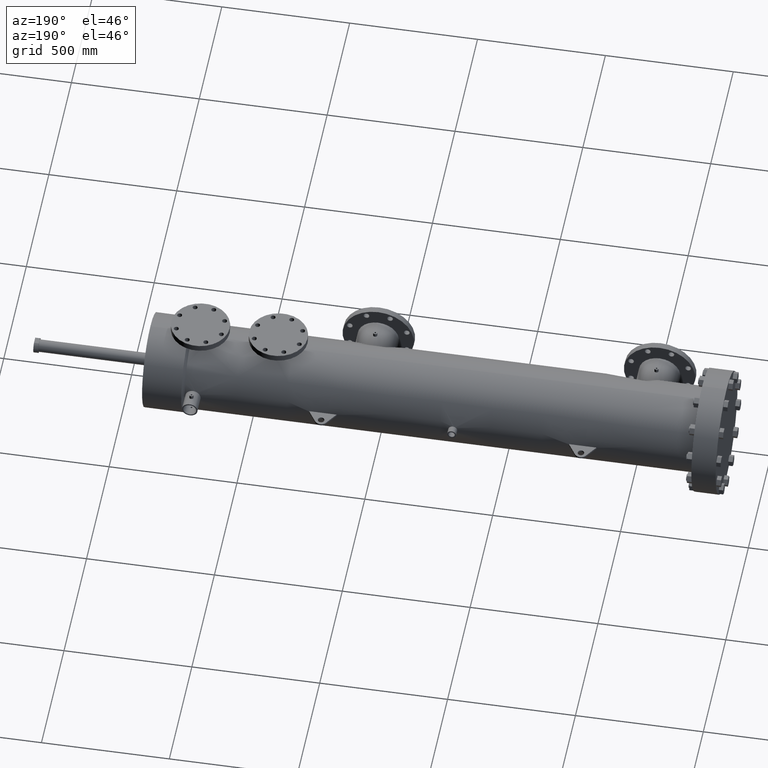
[diagram: clean part render]
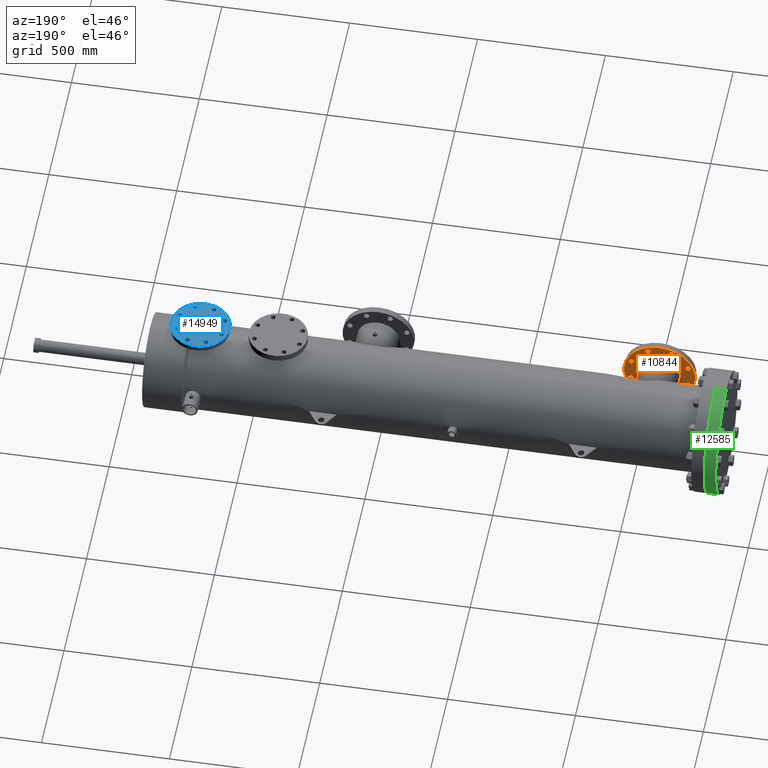
[diagram: same view with three faces highlighted in distinct colors, each labeled with its STEP entity id]
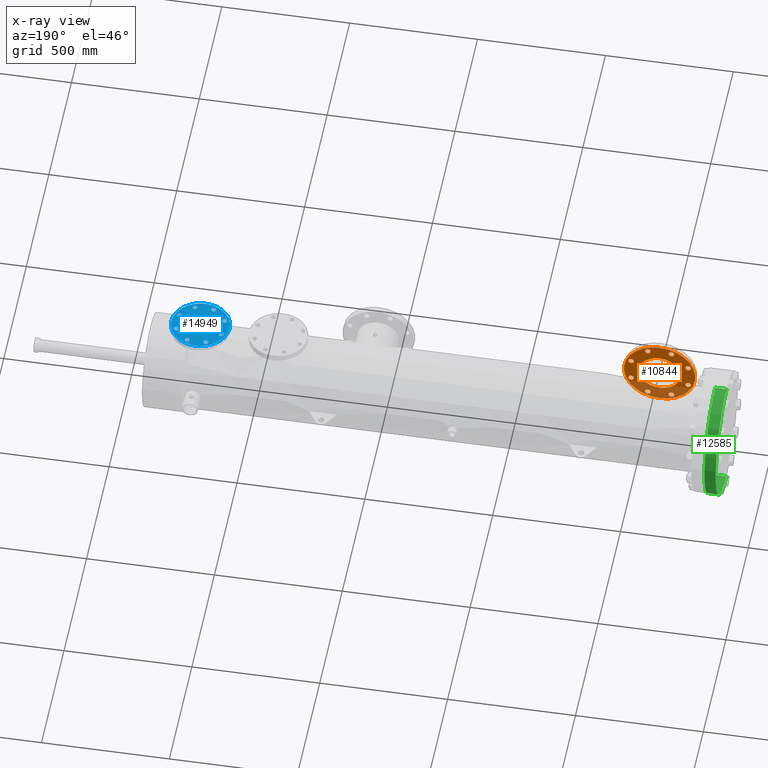
[diagram: x-ray of the same camera — body ghosted, the three highlighted faces saturated]
A machine part, auxiliary view with three faces highlighted in distinct colors.
The next image is the same camera in x-ray (body ghosted, the three faces saturated) — at least one of them is partly hidden behind the body in this view.
Their STEP definitions:

[orange] entity #10844 — the highlighted planar face has unit normal (-0, 1, 0).
#317 = FACE_BOUND ( 'NONE', #848, .T. ) ;
#665 = EDGE_LOOP ( 'NONE', ( #8991, #18816 ) ) ;
#848 = EDGE_LOOP ( 'NONE', ( #21444, #9256 ) ) ;
#927 = FACE_BOUND ( 'NONE', #665, .T. ) ;
#980 = CARTESIAN_POINT ( 'NONE',  ( 0.0000000000000000000, 173.5313553879231563, 0.0000000000000000000 ) ) ;
#1032 = CARTESIAN_POINT ( 'NONE',  ( 704.9378771982816261, 173.5313553879231563, 4.828427779428680289 ) ) ;
#1224 = FACE_BOUND ( 'NONE', #4467, .T. ) ;
#1476 = DIRECTION ( 'NONE',  ( 0.0000000000000000000, -1.000000000000000000, 0.0000000000000000000 ) ) ;
#1498 = DIRECTION ( 'NONE',  ( -0.0000000000000000000, 1.000000000000000000, -0.0000000000000000000 ) ) ;
#1524 = DIRECTION ( 'NONE',  ( 0.0000000000000000000, -1.000000000000000000, 0.0000000000000000000 ) ) ;
#1609 = DIRECTION ( 'NONE',  ( 0.0000000000000000000, 0.0000000000000000000, 1.000000000000000000 ) ) ;
#1651 = EDGE_CURVE ( 'NONE', #23925, #21858, #13624, .T. ) ;
#1785 = DIRECTION ( 'NONE',  ( 0.0000000000000000000, -1.000000000000000000, 0.0000000000000000000 ) ) ;
#2089 = CIRCLE ( 'NONE', #3123, 0.4399999999999270051 ) ;
#2125 = ORIENTED_EDGE ( 'NONE', *, *, #13041, .T. ) ;
#2153 = EDGE_LOOP ( 'NONE', ( #23672, #16772 ) ) ;
#2446 = VERTEX_POINT ( 'NONE', #21482 ) ;
#2478 = DIRECTION ( 'NONE',  ( 0.0000000000000000000, 0.0000000000000000000, -1.000000000000000000 ) ) ;
#2567 = DIRECTION ( 'NONE',  ( -0.0000000000000000000, -1.000000000000000000, -0.0000000000000000000 ) ) ;
#2743 = VERTEX_POINT ( 'NONE', #18521 ) ;
#2749 = EDGE_CURVE ( 'NONE', #24200, #19822, #10489, .T. ) ;
#2894 = AXIS2_PLACEMENT_3D ( 'NONE', #24964, #1476, #15161 ) ;
#3033 = AXIS2_PLACEMENT_3D ( 'NONE', #8732, #24682, #10682 ) ;
#3123 = AXIS2_PLACEMENT_3D ( 'NONE', #17172, #24815, #13226 ) ;
#3325 = EDGE_CURVE ( 'NONE', #4566, #2446, #17848, .T. ) ;
#3763 = CARTESIAN_POINT ( 'NONE',  ( 708.5735562733002553, 173.5313553879231563, -4.388877951918441767 ) ) ;
#3772 = DIRECTION ( 'NONE',  ( 0.0000000000000000000, -1.000000000000000000, 0.0000000000000000000 ) ) ;
#4074 = DIRECTION ( 'NONE',  ( 0.0000000000000000000, -1.000000000000000000, 0.0000000000000000000 ) ) ;
#4123 = CIRCLE ( 'NONE', #13800, 0.4399999999999270051 ) ;
#4143 = VERTEX_POINT ( 'NONE', #7001 ) ;
#4157 = AXIS2_PLACEMENT_3D ( 'NONE', #14833, #16824, #5076 ) ;
#4357 = CARTESIAN_POINT ( 'NONE',  ( 706.7556235020157374, 173.5313553879231563, 0.0000000000000000000 ) ) ;
#4467 = EDGE_LOOP ( 'NONE', ( #4849, #6104 ) ) ;
#4566 = VERTEX_POINT ( 'NONE', #25042 ) ;
#4775 = CARTESIAN_POINT ( 'NONE',  ( 706.7556235020157374, 173.5313553879231563, 0.0000000000000000000 ) ) ;
#4823 = CIRCLE ( 'NONE', #17006, 0.4399999999999270051 ) ;
#4849 = ORIENTED_EDGE ( 'NONE', *, *, #24066, .T. ) ;
#4893 = DIRECTION ( 'NONE',  ( -0.0000000000000000000, 1.000000000000000000, -0.0000000000000000000 ) ) ;
#5070 = DIRECTION ( 'NONE',  ( 0.0000000000000000000, 0.0000000000000000000, 1.000000000000000000 ) ) ;
#5074 = CARTESIAN_POINT ( 'NONE',  ( 706.7556235020157374, 173.5313553879231563, 3.196850393700750192 ) ) ;
#5076 = DIRECTION ( 'NONE',  ( 0.0000000000000000000, 0.0000000000000000000, 1.000000000000000000 ) ) ;
#5351 = EDGE_CURVE ( 'NONE', #8994, #5703, #4823, .T. ) ;
#5399 = CARTESIAN_POINT ( 'NONE',  ( 702.3670638701173630, 173.5313553879231563, -1.818064623754354292 ) ) ;
#5703 = VERTEX_POINT ( 'NONE', #13393 ) ;
#5884 = DIRECTION ( 'NONE',  ( 0.0000000000000000000, -1.000000000000000000, 0.0000000000000000000 ) ) ;
#6104 = ORIENTED_EDGE ( 'NONE', *, *, #5351, .T. ) ;
#6255 = CIRCLE ( 'NONE', #24342, 0.4400000000000728884 ) ;
#6296 = EDGE_CURVE ( 'NONE', #4143, #8668, #19845, .T. ) ;
#6766 = DIRECTION ( 'NONE',  ( 0.0000000000000000000, 0.0000000000000000000, -1.000000000000000000 ) ) ;
#7001 = CARTESIAN_POINT ( 'NONE',  ( 706.7556235020157374, 173.5313553879231563, -3.196850393700750192 ) ) ;
#7063 = DIRECTION ( 'NONE',  ( -0.0000000000000000000, 1.000000000000000000, 0.0000000000000000000 ) ) ;
#7096 = AXIS2_PLACEMENT_3D ( 'NONE', #7272, #18947, #14872 ) ;
#7272 = CARTESIAN_POINT ( 'NONE',  ( 704.9378771982812850, 173.5313553879231563, -4.388877951918268572 ) ) ;
#7679 = DIRECTION ( 'NONE',  ( 0.0000000000000000000, 0.0000000000000000000, 1.000000000000000000 ) ) ;
#8019 = CARTESIAN_POINT ( 'NONE',  ( 706.7556235020157374, 173.5313553879231563, 0.0000000000000000000 ) ) ;
#8040 = DIRECTION ( 'NONE',  ( 0.0000000000000000000, 0.0000000000000000000, 1.000000000000000000 ) ) ;
#8482 = CARTESIAN_POINT ( 'NONE',  ( 708.5735562733008237, 173.5313553879231563, 4.828427779428394295 ) ) ;
#8668 = VERTEX_POINT ( 'NONE', #5074 ) ;
#8692 = AXIS2_PLACEMENT_3D ( 'NONE', #23321, #3772, #25018 ) ;
#8732 = CARTESIAN_POINT ( 'NONE',  ( 704.9378771982816261, 173.5313553879231563, 4.388427779428607067 ) ) ;
#8991 = ORIENTED_EDGE ( 'NONE', *, *, #23638, .T. ) ;
#8994 = VERTEX_POINT ( 'NONE', #9067 ) ;
#9067 = CARTESIAN_POINT ( 'NONE',  ( 708.5735562733002553, 173.5313553879231563, -3.948877951918515095 ) ) ;
#9107 = EDGE_CURVE ( 'NONE', #24517, #18275, #23998, .T. ) ;
#9163 = ORIENTED_EDGE ( 'NONE', *, *, #19997, .T. ) ;
#9186 = AXIS2_PLACEMENT_3D ( 'NONE', #13256, #1524, #1609 ) ;
#9256 = ORIENTED_EDGE ( 'NONE', *, *, #16052, .T. ) ;
#9330 = DIRECTION ( 'NONE',  ( 0.0000000000000000000, 0.0000000000000000000, 1.000000000000000000 ) ) ;
#9333 = DIRECTION ( 'NONE',  ( 0.0000000000000000000, 0.0000000000000000000, 1.000000000000000000 ) ) ;
#9380 = AXIS2_PLACEMENT_3D ( 'NONE', #15637, #15720, #8040 ) ;
#9437 = ORIENTED_EDGE ( 'NONE', *, *, #16555, .T. ) ;
#9498 = VERTEX_POINT ( 'NONE', #15227 ) ;
#9717 = CARTESIAN_POINT ( 'NONE',  ( 708.5735562733002553, 173.5313553879231563, -4.388877951918441767 ) ) ;
#9795 = ORIENTED_EDGE ( 'NONE', *, *, #18143, .T. ) ;
#9806 = DIRECTION ( 'NONE',  ( 0.0000000000000000000, 0.0000000000000000000, 1.000000000000000000 ) ) ;
#9883 = VERTEX_POINT ( 'NONE', #21350 ) ;
#10039 = CARTESIAN_POINT ( 'NONE',  ( 702.3670638701173630, 173.5313553879231563, -2.258064623754281186 ) ) ;
#10075 = ORIENTED_EDGE ( 'NONE', *, *, #15672, .T. ) ;
#10214 = CARTESIAN_POINT ( 'NONE',  ( 704.9378771982816261, 173.5313553879231563, 3.948427779428534290 ) ) ;
#10298 = CIRCLE ( 'NONE', #13384, 0.4399999999999270051 ) ;
#10489 = CIRCLE ( 'NONE', #3033, 0.4400000000000728884 ) ;
#10601 = CARTESIAN_POINT ( 'NONE',  ( 702.3670638701173630, 173.5313553879231563, -1.818064623754354292 ) ) ;
#10682 = DIRECTION ( 'NONE',  ( 0.0000000000000000000, 0.0000000000000000000, 1.000000000000000000 ) ) ;
#10844 = ADVANCED_FACE ( 'NONE', ( #927, #23930, #16854, #11630, #15598, #1224, #317, #24551, #21508, #15304 ), #12867, .T. ) ;
#10879 = ORIENTED_EDGE ( 'NONE', *, *, #9107, .T. ) ;
#11076 = EDGE_LOOP ( 'NONE', ( #9795, #12222 ) ) ;
#11335 = CARTESIAN_POINT ( 'NONE',  ( 711.1443696014645184, 173.5313553879231563, 1.817614451264482733 ) ) ;
#11461 = ORIENTED_EDGE ( 'NONE', *, *, #24530, .T. ) ;
#11529 = AXIS2_PLACEMENT_3D ( 'NONE', #10601, #16519, #12488 ) ;
#11553 = ORIENTED_EDGE ( 'NONE', *, *, #6296, .T. ) ;
#11630 = FACE_BOUND ( 'NONE', #21913, .T. ) ;
#11944 = CARTESIAN_POINT ( 'NONE',  ( 702.3670638701175903, 173.5313553879231563, 1.377614451264835393 ) ) ;
#12046 = CIRCLE ( 'NONE', #7096, 0.4399999999999270051 ) ;
#12112 = CIRCLE ( 'NONE', #19610, 0.4399999999999270051 ) ;
#12125 = CARTESIAN_POINT ( 'NONE',  ( 711.1443696014645184, 173.5313553879231563, 2.257614451264409627 ) ) ;
#12191 = EDGE_CURVE ( 'NONE', #2743, #15816, #24335, .T. ) ;
#12222 = ORIENTED_EDGE ( 'NONE', *, *, #20955, .T. ) ;
#12488 = DIRECTION ( 'NONE',  ( 0.0000000000000000000, 0.0000000000000000000, 1.000000000000000000 ) ) ;
#12867 = PLANE ( 'NONE',  #21916 ) ;
#13041 = EDGE_CURVE ( 'NONE', #14348, #9883, #21255, .T. ) ;
#13226 = DIRECTION ( 'NONE',  ( 0.0000000000000000000, 0.0000000000000000000, 1.000000000000000000 ) ) ;
#13256 = CARTESIAN_POINT ( 'NONE',  ( 711.1443696014645184, 173.5313553879231563, 1.817614451264482733 ) ) ;
#13281 = CARTESIAN_POINT ( 'NONE',  ( 711.1443696014642910, 173.5313553879231563, -1.818064623754634068 ) ) ;
#13384 = AXIS2_PLACEMENT_3D ( 'NONE', #3763, #1785, #23002 ) ;
#13393 = CARTESIAN_POINT ( 'NONE',  ( 708.5735562733002553, 173.5313553879231563, -4.828877951918369327 ) ) ;
#13446 = CARTESIAN_POINT ( 'NONE',  ( 711.1443696014642910, 173.5313553879231563, -1.378064623754706952 ) ) ;
#13555 = CARTESIAN_POINT ( 'NONE',  ( 704.9378771982816261, 173.5313553879231563, 4.388427779428607067 ) ) ;
#13624 = CIRCLE ( 'NONE', #22592, 0.4399999999999270051 ) ;
#13800 = AXIS2_PLACEMENT_3D ( 'NONE', #15615, #5884, #9806 ) ;
#13960 = EDGE_LOOP ( 'NONE', ( #2125, #10075 ) ) ;
#14319 = EDGE_LOOP ( 'NONE', ( #11553, #11461 ) ) ;
#14348 = VERTEX_POINT ( 'NONE', #10039 ) ;
#14833 = CARTESIAN_POINT ( 'NONE',  ( 708.5735562733008237, 173.5313553879231563, 4.388427779428467623 ) ) ;
#14872 = DIRECTION ( 'NONE',  ( 0.0000000000000000000, 0.0000000000000000000, 1.000000000000000000 ) ) ;
#14877 = CIRCLE ( 'NONE', #2894, 0.4399999999999270051 ) ;
#15161 = DIRECTION ( 'NONE',  ( 0.0000000000000000000, 0.0000000000000000000, 1.000000000000000000 ) ) ;
#15227 = CARTESIAN_POINT ( 'NONE',  ( 704.9378771982812850, 173.5313553879231563, -3.948877951918341900 ) ) ;
#15256 = DIRECTION ( 'NONE',  ( 0.0000000000000000000, 0.0000000000000000000, 1.000000000000000000 ) ) ;
#15304 = FACE_OUTER_BOUND ( 'NONE', #22053, .T. ) ;
#15316 = DIRECTION ( 'NONE',  ( 0.0000000000000000000, -1.000000000000000000, 0.0000000000000000000 ) ) ;
#15598 = FACE_BOUND ( 'NONE', #11076, .T. ) ;
#15615 = CARTESIAN_POINT ( 'NONE',  ( 711.1443696014642910, 173.5313553879231563, -1.818064623754634068 ) ) ;
#15637 = CARTESIAN_POINT ( 'NONE',  ( 702.3670638701175903, 173.5313553879231563, 1.817614451264762510 ) ) ;
#15672 = EDGE_CURVE ( 'NONE', #9883, #14348, #18678, .T. ) ;
#15720 = DIRECTION ( 'NONE',  ( 0.0000000000000000000, -1.000000000000000000, 0.0000000000000000000 ) ) ;
#15816 = VERTEX_POINT ( 'NONE', #11944 ) ;
#16037 = AXIS2_PLACEMENT_3D ( 'NONE', #5399, #19143, #9333 ) ;
#16052 = EDGE_CURVE ( 'NONE', #9498, #19671, #2089, .T. ) ;
#16232 = ORIENTED_EDGE ( 'NONE', *, *, #18488, .T. ) ;
#16486 = AXIS2_PLACEMENT_3D ( 'NONE', #8019, #1498, #19852 ) ;
#16519 = DIRECTION ( 'NONE',  ( 0.0000000000000000000, -1.000000000000000000, 0.0000000000000000000 ) ) ;
#16555 = EDGE_CURVE ( 'NONE', #2446, #4566, #22667, .T. ) ;
#16623 = CARTESIAN_POINT ( 'NONE',  ( 706.7556235020157374, 173.5313553879231563, 0.0000000000000000000 ) ) ;
#16772 = ORIENTED_EDGE ( 'NONE', *, *, #17161, .T. ) ;
#16790 = VERTEX_POINT ( 'NONE', #13446 ) ;
#16824 = DIRECTION ( 'NONE',  ( 0.0000000000000000000, -1.000000000000000000, 0.0000000000000000000 ) ) ;
#16854 = FACE_BOUND ( 'NONE', #19131, .T. ) ;
#17006 = AXIS2_PLACEMENT_3D ( 'NONE', #9717, #4074, #7679 ) ;
#17161 = EDGE_CURVE ( 'NONE', #21858, #23925, #22022, .T. ) ;
#17172 = CARTESIAN_POINT ( 'NONE',  ( 704.9378771982812850, 173.5313553879231563, -4.388877951918268572 ) ) ;
#17715 = CARTESIAN_POINT ( 'NONE',  ( 704.9378771982812850, 173.5313553879231563, -4.828877951918196132 ) ) ;
#17848 = CIRCLE ( 'NONE', #16486, 5.500000000000049738 ) ;
#17877 = CARTESIAN_POINT ( 'NONE',  ( 708.5735562733008237, 173.5313553879231563, 3.948427779428540063 ) ) ;
#18143 = EDGE_CURVE ( 'NONE', #20004, #16790, #4123, .T. ) ;
#18275 = VERTEX_POINT ( 'NONE', #17877 ) ;
#18363 = AXIS2_PLACEMENT_3D ( 'NONE', #4357, #2567, #2478 ) ;
#18488 = EDGE_CURVE ( 'NONE', #19822, #24200, #6255, .T. ) ;
#18517 = DIRECTION ( 'NONE',  ( -0.0000000000000000000, -1.000000000000000000, -0.0000000000000000000 ) ) ;
#18521 = CARTESIAN_POINT ( 'NONE',  ( 702.3670638701175903, 173.5313553879231563, 2.257614451264689404 ) ) ;
#18631 = DIRECTION ( 'NONE',  ( 0.0000000000000000000, 0.0000000000000000000, 1.000000000000000000 ) ) ;
#18678 = CIRCLE ( 'NONE', #16037, 0.4399999999999270051 ) ;
#18816 = ORIENTED_EDGE ( 'NONE', *, *, #12191, .T. ) ;
#18825 = CARTESIAN_POINT ( 'NONE',  ( 711.1443696014642910, 173.5313553879231563, -2.258064623754560962 ) ) ;
#18947 = DIRECTION ( 'NONE',  ( 0.0000000000000000000, -1.000000000000000000, 0.0000000000000000000 ) ) ;
#19023 = EDGE_CURVE ( 'NONE', #19671, #9498, #12046, .T. ) ;
#19079 = ORIENTED_EDGE ( 'NONE', *, *, #3325, .T. ) ;
#19089 = DIRECTION ( 'NONE',  ( 0.0000000000000000000, -1.000000000000000000, 0.0000000000000000000 ) ) ;
#19131 = EDGE_LOOP ( 'NONE', ( #9163, #10879 ) ) ;
#19143 = DIRECTION ( 'NONE',  ( 0.0000000000000000000, -1.000000000000000000, 0.0000000000000000000 ) ) ;
#19610 = AXIS2_PLACEMENT_3D ( 'NONE', #13281, #15316, #9330 ) ;
#19671 = VERTEX_POINT ( 'NONE', #17715 ) ;
#19822 = VERTEX_POINT ( 'NONE', #10214 ) ;
#19845 = CIRCLE ( 'NONE', #18363, 3.196850393700750192 ) ;
#19852 = DIRECTION ( 'NONE',  ( 0.0000000000000000000, 0.0000000000000000000, 1.000000000000000000 ) ) ;
#19997 = EDGE_CURVE ( 'NONE', #18275, #24517, #20831, .T. ) ;
#20004 = VERTEX_POINT ( 'NONE', #18825 ) ;
#20831 = CIRCLE ( 'NONE', #4157, 0.4399999999999270051 ) ;
#20955 = EDGE_CURVE ( 'NONE', #16790, #20004, #12112, .T. ) ;
#21167 = AXIS2_PLACEMENT_3D ( 'NONE', #4775, #18517, #6766 ) ;
#21255 = CIRCLE ( 'NONE', #11529, 0.4399999999999270051 ) ;
#21350 = CARTESIAN_POINT ( 'NONE',  ( 702.3670638701173630, 173.5313553879231563, -1.378064623754427176 ) ) ;
#21444 = ORIENTED_EDGE ( 'NONE', *, *, #19023, .T. ) ;
#21482 = CARTESIAN_POINT ( 'NONE',  ( 706.7556235020157374, 173.5313553879231563, 5.500000000000049738 ) ) ;
#21508 = FACE_BOUND ( 'NONE', #14319, .T. ) ;
#21758 = CIRCLE ( 'NONE', #21167, 3.196850393700750192 ) ;
#21858 = VERTEX_POINT ( 'NONE', #12125 ) ;
#21913 = EDGE_LOOP ( 'NONE', ( #16232, #22328 ) ) ;
#21916 = AXIS2_PLACEMENT_3D ( 'NONE', #980, #7063, #5070 ) ;
#22022 = CIRCLE ( 'NONE', #9186, 0.4399999999999270051 ) ;
#22053 = EDGE_LOOP ( 'NONE', ( #9437, #19079 ) ) ;
#22328 = ORIENTED_EDGE ( 'NONE', *, *, #2749, .T. ) ;
#22592 = AXIS2_PLACEMENT_3D ( 'NONE', #11335, #19089, #15256 ) ;
#22667 = CIRCLE ( 'NONE', #23330, 5.500000000000049738 ) ;
#22752 = CARTESIAN_POINT ( 'NONE',  ( 711.1443696014645184, 173.5313553879231563, 1.377614451264555617 ) ) ;
#23002 = DIRECTION ( 'NONE',  ( 0.0000000000000000000, 0.0000000000000000000, 1.000000000000000000 ) ) ;
#23321 = CARTESIAN_POINT ( 'NONE',  ( 708.5735562733008237, 173.5313553879231563, 4.388427779428467623 ) ) ;
#23330 = AXIS2_PLACEMENT_3D ( 'NONE', #16623, #4893, #18631 ) ;
#23638 = EDGE_CURVE ( 'NONE', #15816, #2743, #14877, .T. ) ;
#23672 = ORIENTED_EDGE ( 'NONE', *, *, #1651, .T. ) ;
#23860 = DIRECTION ( 'NONE',  ( 0.0000000000000000000, 0.0000000000000000000, 1.000000000000000000 ) ) ;
#23925 = VERTEX_POINT ( 'NONE', #22752 ) ;
#23930 = FACE_BOUND ( 'NONE', #2153, .T. ) ;
#23944 = DIRECTION ( 'NONE',  ( 0.0000000000000000000, -1.000000000000000000, 0.0000000000000000000 ) ) ;
#23998 = CIRCLE ( 'NONE', #8692, 0.4399999999999270051 ) ;
#24066 = EDGE_CURVE ( 'NONE', #5703, #8994, #10298, .T. ) ;
#24200 = VERTEX_POINT ( 'NONE', #1032 ) ;
#24335 = CIRCLE ( 'NONE', #9380, 0.4399999999999270051 ) ;
#24342 = AXIS2_PLACEMENT_3D ( 'NONE', #13555, #23944, #23860 ) ;
#24517 = VERTEX_POINT ( 'NONE', #8482 ) ;
#24530 = EDGE_CURVE ( 'NONE', #8668, #4143, #21758, .T. ) ;
#24551 = FACE_BOUND ( 'NONE', #13960, .T. ) ;
#24682 = DIRECTION ( 'NONE',  ( 0.0000000000000000000, -1.000000000000000000, 0.0000000000000000000 ) ) ;
#24815 = DIRECTION ( 'NONE',  ( 0.0000000000000000000, -1.000000000000000000, 0.0000000000000000000 ) ) ;
#24964 = CARTESIAN_POINT ( 'NONE',  ( 702.3670638701175903, 173.5313553879231563, 1.817614451264762510 ) ) ;
#25018 = DIRECTION ( 'NONE',  ( 0.0000000000000000000, 0.0000000000000000000, 1.000000000000000000 ) ) ;
#25042 = CARTESIAN_POINT ( 'NONE',  ( 706.7556235020157374, 173.5313553879231563, -5.500000000000049738 ) ) ;

[blue] entity #14949 — the highlighted planar face has unit normal (0, 0, 1).
#452 = ORIENTED_EDGE ( 'NONE', *, *, #15515, .T. ) ;
#489 = AXIS2_PLACEMENT_3D ( 'NONE', #3701, #5744, #9749 ) ;
#649 = ORIENTED_EDGE ( 'NONE', *, *, #19579, .F. ) ;
#849 = DIRECTION ( 'NONE',  ( 1.000000000000000000, 0.0000000000000000000, 0.0000000000000000000 ) ) ;
#900 = EDGE_CURVE ( 'NONE', #5431, #13920, #9945, .T. ) ;
#1376 = CARTESIAN_POINT ( 'NONE',  ( 772.1004278885422991, 185.5985057126212325, 8.999999999999998224 ) ) ;
#1385 = AXIS2_PLACEMENT_3D ( 'NONE', #7202, #20696, #22765 ) ;
#1482 = AXIS2_PLACEMENT_3D ( 'NONE', #13416, #3668, #7604 ) ;
#1543 = FACE_BOUND ( 'NONE', #6343, .T. ) ;
#1616 = CARTESIAN_POINT ( 'NONE',  ( 779.0295243823768487, 182.7283799698831501, 8.999999999999998224 ) ) ;
#1707 = DIRECTION ( 'NONE',  ( 0.0000000000000000000, 0.0000000000000000000, 1.000000000000000000 ) ) ;
#1755 = DIRECTION ( 'NONE',  ( 1.000000000000000000, 0.0000000000000000000, 0.0000000000000000000 ) ) ;
#2711 = DIRECTION ( 'NONE',  ( 1.000000000000000000, 0.0000000000000000000, -0.0000000000000000000 ) ) ;
#2773 = DIRECTION ( 'NONE',  ( 0.0000000000000000000, 0.0000000000000000000, 1.000000000000000000 ) ) ;
#2784 = FACE_BOUND ( 'NONE', #17914, .T. ) ;
#2887 = CARTESIAN_POINT ( 'NONE',  ( 777.3750390068287288, 180.6988945943349449, 8.999999999999998224 ) ) ;
#3048 = CIRCLE ( 'NONE', #24792, 4.500000373997108838 ) ;
#3065 = CARTESIAN_POINT ( 'NONE',  ( 778.6545243823768487, 182.7283799698831501, 8.999999999999998224 ) ) ;
#3080 = AXIS2_PLACEMENT_3D ( 'NONE', #22745, #22570, #849 ) ;
#3121 = CIRCLE ( 'NONE', #14973, 0.3750000000000002220 ) ;
#3572 = EDGE_CURVE ( 'NONE', #18085, #17544, #8038, .T. ) ;
#3668 = DIRECTION ( 'NONE',  ( 0.0000000000000000000, 0.0000000000000000000, 1.000000000000000000 ) ) ;
#3701 = CARTESIAN_POINT ( 'NONE',  ( 779.0295243823768487, 185.5985057126212325, 8.999999999999998224 ) ) ;
#3782 = CARTESIAN_POINT ( 'NONE',  ( 771.7254278885422991, 185.5985057126212325, 8.999999999999998224 ) ) ;
#4011 = ORIENTED_EDGE ( 'NONE', *, *, #25153, .F. ) ;
#4043 = AXIS2_PLACEMENT_3D ( 'NONE', #1616, #17119, #7452 ) ;
#4122 = AXIS2_PLACEMENT_3D ( 'NONE', #7054, #12946, #8932 ) ;
#4490 = PLANE ( 'NONE',  #5553 ) ;
#4563 = VERTEX_POINT ( 'NONE', #11064 ) ;
#4582 = ORIENTED_EDGE ( 'NONE', *, *, #21492, .F. ) ;
#4595 = CIRCLE ( 'NONE', #11933, 0.3750000000000002220 ) ;
#4694 = VERTEX_POINT ( 'NONE', #17412 ) ;
#4878 = FACE_BOUND ( 'NONE', #16862, .T. ) ;
#4954 = EDGE_CURVE ( 'NONE', #4563, #14147, #24152, .T. ) ;
#5077 = VERTEX_POINT ( 'NONE', #16853 ) ;
#5084 = DIRECTION ( 'NONE',  ( 0.0000000000000000000, 0.0000000000000000000, 1.000000000000000000 ) ) ;
#5243 = VERTEX_POINT ( 'NONE', #7942 ) ;
#5278 = CARTESIAN_POINT ( 'NONE',  ( 780.0649765094566419, 184.1634428412521913, 8.999999999999998224 ) ) ;
#5324 = ORIENTED_EDGE ( 'NONE', *, *, #16785, .F. ) ;
#5337 = DIRECTION ( 'NONE',  ( 1.000000000000000000, 0.0000000000000000000, 0.0000000000000000000 ) ) ;
#5431 = VERTEX_POINT ( 'NONE', #2887 ) ;
#5504 = EDGE_LOOP ( 'NONE', ( #23333, #13903 ) ) ;
#5553 = AXIS2_PLACEMENT_3D ( 'NONE', #18311, #18218, #2711 ) ;
#5646 = CIRCLE ( 'NONE', #4122, 0.3750000000000002220 ) ;
#5670 = EDGE_LOOP ( 'NONE', ( #4582, #649 ) ) ;
#5744 = DIRECTION ( 'NONE',  ( 0.0000000000000000000, 0.0000000000000000000, 1.000000000000000000 ) ) ;
#5977 = EDGE_CURVE ( 'NONE', #13920, #5431, #8503, .T. ) ;
#6004 = CIRCLE ( 'NONE', #1385, 0.3750000000000002220 ) ;
#6123 = VERTEX_POINT ( 'NONE', #7216 ) ;
#6343 = EDGE_LOOP ( 'NONE', ( #18950, #4011 ) ) ;
#6561 = AXIS2_PLACEMENT_3D ( 'NONE', #13336, #7443, #19274 ) ;
#7053 = VERTEX_POINT ( 'NONE', #19548 ) ;
#7054 = CARTESIAN_POINT ( 'NONE',  ( 774.1299132640904190, 187.6279910881695230, 8.999999999999998224 ) ) ;
#7202 = CARTESIAN_POINT ( 'NONE',  ( 772.1004278885422991, 182.7283799698831501, 8.999999999999998224 ) ) ;
#7216 = CARTESIAN_POINT ( 'NONE',  ( 777.3750390068287288, 187.6279910881695230, 8.999999999999998224 ) ) ;
#7323 = DIRECTION ( 'NONE',  ( 0.0000000000000000000, 0.0000000000000000000, 1.000000000000000000 ) ) ;
#7425 = VERTEX_POINT ( 'NONE', #20782 ) ;
#7443 = DIRECTION ( 'NONE',  ( 0.0000000000000000000, 0.0000000000000000000, 1.000000000000000000 ) ) ;
#7452 = DIRECTION ( 'NONE',  ( 1.000000000000000000, 0.0000000000000000000, 0.0000000000000000000 ) ) ;
#7562 = CIRCLE ( 'NONE', #8670, 0.3750000000000002220 ) ;
#7589 = DIRECTION ( 'NONE',  ( 0.0000000000000000000, 0.0000000000000000000, 1.000000000000000000 ) ) ;
#7604 = DIRECTION ( 'NONE',  ( 1.000000000000000000, 0.0000000000000000000, 0.0000000000000000000 ) ) ;
#7681 = CARTESIAN_POINT ( 'NONE',  ( 772.1004278885422991, 182.7283799698831501, 8.999999999999998224 ) ) ;
#7942 = CARTESIAN_POINT ( 'NONE',  ( 772.4754278885422991, 182.7283799698831501, 8.999999999999998224 ) ) ;
#8038 = CIRCLE ( 'NONE', #17822, 4.500000373997108838 ) ;
#8221 = CARTESIAN_POINT ( 'NONE',  ( 774.1299132640904190, 187.6279910881695230, 8.999999999999998224 ) ) ;
#8503 = CIRCLE ( 'NONE', #21989, 0.3750000000000002220 ) ;
#8605 = FACE_BOUND ( 'NONE', #15944, .T. ) ;
#8670 = AXIS2_PLACEMENT_3D ( 'NONE', #1376, #15071, #19058 ) ;
#8932 = DIRECTION ( 'NONE',  ( 1.000000000000000000, 0.0000000000000000000, 0.0000000000000000000 ) ) ;
#9529 = ORIENTED_EDGE ( 'NONE', *, *, #4954, .F. ) ;
#9749 = DIRECTION ( 'NONE',  ( 1.000000000000000000, 0.0000000000000000000, 0.0000000000000000000 ) ) ;
#9762 = CIRCLE ( 'NONE', #16765, 0.3750000000000002220 ) ;
#9817 = AXIS2_PLACEMENT_3D ( 'NONE', #16833, #5084, #5337 ) ;
#9830 = CIRCLE ( 'NONE', #1482, 0.3750000000000002220 ) ;
#9880 = EDGE_CURVE ( 'NONE', #7425, #6123, #9830, .T. ) ;
#9945 = CIRCLE ( 'NONE', #14309, 0.3750000000000002220 ) ;
#10092 = FACE_BOUND ( 'NONE', #22472, .T. ) ;
#10151 = CARTESIAN_POINT ( 'NONE',  ( 776.6250390068287288, 180.6988945943349449, 8.999999999999998224 ) ) ;
#10252 = VERTEX_POINT ( 'NONE', #11348 ) ;
#10417 = DIRECTION ( 'NONE',  ( 1.000000000000000000, 0.0000000000000000000, 0.0000000000000000000 ) ) ;
#11064 = CARTESIAN_POINT ( 'NONE',  ( 779.4045243823768487, 182.7283799698831501, 8.999999999999998224 ) ) ;
#11115 = CARTESIAN_POINT ( 'NONE',  ( 774.1299132640904190, 180.6988945943349449, 8.999999999999998224 ) ) ;
#11348 = CARTESIAN_POINT ( 'NONE',  ( 773.7549132640904190, 180.6988945943349449, 8.999999999999998224 ) ) ;
#11563 = CARTESIAN_POINT ( 'NONE',  ( 771.0649757614623923, 184.1634428412521913, 8.999999999999998224 ) ) ;
#11852 = CIRCLE ( 'NONE', #489, 0.3750000000000002220 ) ;
#11933 = AXIS2_PLACEMENT_3D ( 'NONE', #12311, #18159, #10417 ) ;
#11959 = ORIENTED_EDGE ( 'NONE', *, *, #17393, .F. ) ;
#12311 = CARTESIAN_POINT ( 'NONE',  ( 779.0295243823768487, 185.5985057126212325, 8.999999999999998224 ) ) ;
#12620 = DIRECTION ( 'NONE',  ( 0.0000000000000000000, 0.0000000000000000000, 1.000000000000000000 ) ) ;
#12678 = CARTESIAN_POINT ( 'NONE',  ( 777.0000390068287288, 180.6988945943349449, 8.999999999999998224 ) ) ;
#12790 = ORIENTED_EDGE ( 'NONE', *, *, #9880, .F. ) ;
#12946 = DIRECTION ( 'NONE',  ( 0.0000000000000000000, 0.0000000000000000000, 1.000000000000000000 ) ) ;
#12973 = ORIENTED_EDGE ( 'NONE', *, *, #13299, .F. ) ;
#13184 = CARTESIAN_POINT ( 'NONE',  ( 775.5649761354594602, 184.1634428412521913, 8.999999999999998224 ) ) ;
#13299 = EDGE_CURVE ( 'NONE', #17399, #10252, #3121, .T. ) ;
#13336 = CARTESIAN_POINT ( 'NONE',  ( 772.1004278885422991, 185.5985057126212325, 8.999999999999998224 ) ) ;
#13416 = CARTESIAN_POINT ( 'NONE',  ( 777.0000390068287288, 187.6279910881695230, 8.999999999999998224 ) ) ;
#13423 = CARTESIAN_POINT ( 'NONE',  ( 773.7549132640904190, 187.6279910881695230, 8.999999999999998224 ) ) ;
#13736 = VERTEX_POINT ( 'NONE', #23815 ) ;
#13737 = CARTESIAN_POINT ( 'NONE',  ( 777.0000390068287288, 180.6988945943349449, 8.999999999999998224 ) ) ;
#13882 = EDGE_CURVE ( 'NONE', #5077, #15685, #4595, .T. ) ;
#13903 = ORIENTED_EDGE ( 'NONE', *, *, #17699, .F. ) ;
#13920 = VERTEX_POINT ( 'NONE', #10151 ) ;
#13948 = CIRCLE ( 'NONE', #24967, 0.3750000000000002220 ) ;
#14147 = VERTEX_POINT ( 'NONE', #3065 ) ;
#14309 = AXIS2_PLACEMENT_3D ( 'NONE', #13737, #7589, #1755 ) ;
#14567 = DIRECTION ( 'NONE',  ( 1.000000000000000000, 0.0000000000000000000, 0.0000000000000000000 ) ) ;
#14949 = ADVANCED_FACE ( 'NONE', ( #8605, #15307, #1543, #2784, #23635, #4878, #10092, #15895, #24553 ), #4490, .T. ) ;
#14973 = AXIS2_PLACEMENT_3D ( 'NONE', #11115, #19277, #25087 ) ;
#15071 = DIRECTION ( 'NONE',  ( 0.0000000000000000000, 0.0000000000000000000, 1.000000000000000000 ) ) ;
#15244 = AXIS2_PLACEMENT_3D ( 'NONE', #18745, #12620, #22539 ) ;
#15280 = CIRCLE ( 'NONE', #9817, 0.3750000000000002220 ) ;
#15292 = EDGE_CURVE ( 'NONE', #10252, #17399, #15280, .T. ) ;
#15307 = FACE_BOUND ( 'NONE', #5670, .T. ) ;
#15423 = CARTESIAN_POINT ( 'NONE',  ( 775.5649761354594602, 184.1634428412521913, 8.999999999999998224 ) ) ;
#15515 = EDGE_CURVE ( 'NONE', #17544, #18085, #3048, .T. ) ;
#15685 = VERTEX_POINT ( 'NONE', #22862 ) ;
#15895 = FACE_BOUND ( 'NONE', #5504, .T. ) ;
#15944 = EDGE_LOOP ( 'NONE', ( #5324, #17852 ) ) ;
#16338 = DIRECTION ( 'NONE',  ( 0.0000000000000000000, 0.0000000000000000000, 1.000000000000000000 ) ) ;
#16392 = CARTESIAN_POINT ( 'NONE',  ( 774.5049132640904190, 180.6988945943349449, 8.999999999999998224 ) ) ;
#16765 = AXIS2_PLACEMENT_3D ( 'NONE', #7681, #23461, #17546 ) ;
#16785 = EDGE_CURVE ( 'NONE', #15685, #5077, #11852, .T. ) ;
#16833 = CARTESIAN_POINT ( 'NONE',  ( 774.1299132640904190, 180.6988945943349449, 8.999999999999998224 ) ) ;
#16845 = ORIENTED_EDGE ( 'NONE', *, *, #24565, .F. ) ;
#16853 = CARTESIAN_POINT ( 'NONE',  ( 779.4045243823768487, 185.5985057126212325, 8.999999999999998224 ) ) ;
#16862 = EDGE_LOOP ( 'NONE', ( #12790, #11959 ) ) ;
#17050 = CIRCLE ( 'NONE', #15244, 0.3750000000000002220 ) ;
#17108 = VERTEX_POINT ( 'NONE', #13423 ) ;
#17119 = DIRECTION ( 'NONE',  ( 0.0000000000000000000, 0.0000000000000000000, 1.000000000000000000 ) ) ;
#17190 = EDGE_CURVE ( 'NONE', #19114, #4694, #24744, .T. ) ;
#17393 = EDGE_CURVE ( 'NONE', #6123, #7425, #17050, .T. ) ;
#17399 = VERTEX_POINT ( 'NONE', #16392 ) ;
#17412 = CARTESIAN_POINT ( 'NONE',  ( 772.4754278885422991, 185.5985057126212325, 8.999999999999998224 ) ) ;
#17544 = VERTEX_POINT ( 'NONE', #11563 ) ;
#17546 = DIRECTION ( 'NONE',  ( 1.000000000000000000, 0.0000000000000000000, 0.0000000000000000000 ) ) ;
#17699 = EDGE_CURVE ( 'NONE', #13736, #17108, #13948, .T. ) ;
#17822 = AXIS2_PLACEMENT_3D ( 'NONE', #13184, #1707, #25261 ) ;
#17852 = ORIENTED_EDGE ( 'NONE', *, *, #13882, .F. ) ;
#17914 = EDGE_LOOP ( 'NONE', ( #25133, #19506 ) ) ;
#18085 = VERTEX_POINT ( 'NONE', #5278 ) ;
#18159 = DIRECTION ( 'NONE',  ( 0.0000000000000000000, 0.0000000000000000000, 1.000000000000000000 ) ) ;
#18218 = DIRECTION ( 'NONE',  ( 0.0000000000000000000, 0.0000000000000000000, 1.000000000000000000 ) ) ;
#18311 = CARTESIAN_POINT ( 'NONE',  ( 775.5649761354594602, 184.1634428412521913, 8.999999999999998224 ) ) ;
#18450 = ORIENTED_EDGE ( 'NONE', *, *, #3572, .T. ) ;
#18646 = EDGE_CURVE ( 'NONE', #17108, #13736, #5646, .T. ) ;
#18745 = CARTESIAN_POINT ( 'NONE',  ( 777.0000390068287288, 187.6279910881695230, 8.999999999999998224 ) ) ;
#18950 = ORIENTED_EDGE ( 'NONE', *, *, #17190, .F. ) ;
#19058 = DIRECTION ( 'NONE',  ( 1.000000000000000000, 0.0000000000000000000, 0.0000000000000000000 ) ) ;
#19114 = VERTEX_POINT ( 'NONE', #3782 ) ;
#19274 = DIRECTION ( 'NONE',  ( 1.000000000000000000, 0.0000000000000000000, 0.0000000000000000000 ) ) ;
#19277 = DIRECTION ( 'NONE',  ( 0.0000000000000000000, 0.0000000000000000000, 1.000000000000000000 ) ) ;
#19506 = ORIENTED_EDGE ( 'NONE', *, *, #900, .F. ) ;
#19548 = CARTESIAN_POINT ( 'NONE',  ( 771.7254278885422991, 182.7283799698831501, 8.999999999999998224 ) ) ;
#19579 = EDGE_CURVE ( 'NONE', #5243, #7053, #9762, .T. ) ;
#20324 = DIRECTION ( 'NONE',  ( 1.000000000000000000, 0.0000000000000000000, 0.0000000000000000000 ) ) ;
#20696 = DIRECTION ( 'NONE',  ( 0.0000000000000000000, 0.0000000000000000000, 1.000000000000000000 ) ) ;
#20782 = CARTESIAN_POINT ( 'NONE',  ( 776.6250390068287288, 187.6279910881695230, 8.999999999999998224 ) ) ;
#21069 = DIRECTION ( 'NONE',  ( 1.000000000000000000, 0.0000000000000000000, 0.0000000000000000000 ) ) ;
#21492 = EDGE_CURVE ( 'NONE', #7053, #5243, #6004, .T. ) ;
#21989 = AXIS2_PLACEMENT_3D ( 'NONE', #12678, #2773, #14567 ) ;
#22472 = EDGE_LOOP ( 'NONE', ( #23504, #12973 ) ) ;
#22539 = DIRECTION ( 'NONE',  ( 1.000000000000000000, 0.0000000000000000000, 0.0000000000000000000 ) ) ;
#22570 = DIRECTION ( 'NONE',  ( 0.0000000000000000000, 0.0000000000000000000, 1.000000000000000000 ) ) ;
#22674 = CIRCLE ( 'NONE', #3080, 0.3750000000000002220 ) ;
#22745 = CARTESIAN_POINT ( 'NONE',  ( 779.0295243823768487, 182.7283799698831501, 8.999999999999998224 ) ) ;
#22765 = DIRECTION ( 'NONE',  ( 1.000000000000000000, 0.0000000000000000000, 0.0000000000000000000 ) ) ;
#22862 = CARTESIAN_POINT ( 'NONE',  ( 778.6545243823768487, 185.5985057126212325, 8.999999999999998224 ) ) ;
#23153 = EDGE_LOOP ( 'NONE', ( #16845, #9529 ) ) ;
#23333 = ORIENTED_EDGE ( 'NONE', *, *, #18646, .F. ) ;
#23461 = DIRECTION ( 'NONE',  ( 0.0000000000000000000, 0.0000000000000000000, 1.000000000000000000 ) ) ;
#23504 = ORIENTED_EDGE ( 'NONE', *, *, #15292, .F. ) ;
#23635 = FACE_OUTER_BOUND ( 'NONE', #25201, .T. ) ;
#23815 = CARTESIAN_POINT ( 'NONE',  ( 774.5049132640904190, 187.6279910881695230, 8.999999999999998224 ) ) ;
#24152 = CIRCLE ( 'NONE', #4043, 0.3750000000000002220 ) ;
#24553 = FACE_BOUND ( 'NONE', #23153, .T. ) ;
#24565 = EDGE_CURVE ( 'NONE', #14147, #4563, #22674, .T. ) ;
#24744 = CIRCLE ( 'NONE', #6561, 0.3750000000000002220 ) ;
#24792 = AXIS2_PLACEMENT_3D ( 'NONE', #15423, #7323, #21069 ) ;
#24967 = AXIS2_PLACEMENT_3D ( 'NONE', #8221, #16338, #20324 ) ;
#25087 = DIRECTION ( 'NONE',  ( 1.000000000000000000, 0.0000000000000000000, 0.0000000000000000000 ) ) ;
#25133 = ORIENTED_EDGE ( 'NONE', *, *, #5977, .F. ) ;
#25153 = EDGE_CURVE ( 'NONE', #4694, #19114, #7562, .T. ) ;
#25201 = EDGE_LOOP ( 'NONE', ( #452, #18450 ) ) ;
#25261 = DIRECTION ( 'NONE',  ( 1.000000000000000000, 0.0000000000000000000, 0.0000000000000000000 ) ) ;

[green] entity #12585 — the highlighted cylindrical surface (partial cylindrical patch) has radius 241.3 mm, axis along (-1, -0, -0).
#1860 = CARTESIAN_POINT ( 'NONE',  ( 696.3186235000409852, 184.1613553879231517, 0.0000000000000000000 ) ) ;
#2023 = AXIS2_PLACEMENT_3D ( 'NONE', #12051, #16072, #2468 ) ;
#2468 = DIRECTION ( 'NONE',  ( 0.0000000000000000000, 0.0000000000000000000, 1.000000000000000000 ) ) ;
#3067 = CARTESIAN_POINT ( 'NONE',  ( 696.3186235000409852, 184.1613553879231517, -9.499999999999994671 ) ) ;
#3156 = AXIS2_PLACEMENT_3D ( 'NONE', #1860, #6049, #13917 ) ;
#3351 = CIRCLE ( 'NONE', #3156, 9.499999999999994671 ) ;
#3553 = VERTEX_POINT ( 'NONE', #11459 ) ;
#3897 = CARTESIAN_POINT ( 'NONE',  ( 694.5685801483002706, 184.1613553879231517, 0.0000000000000000000 ) ) ;
#5083 = VERTEX_POINT ( 'NONE', #3067 ) ;
#6049 = DIRECTION ( 'NONE',  ( -1.000000000000000000, -0.0000000000000000000, -0.0000000000000000000 ) ) ;
#6700 = ORIENTED_EDGE ( 'NONE', *, *, #13369, .T. ) ;
#7855 = DIRECTION ( 'NONE',  ( -1.000000000000000000, -0.0000000000000000000, -0.0000000000000000000 ) ) ;
#9902 = VERTEX_POINT ( 'NONE', #19519 ) ;
#11459 = CARTESIAN_POINT ( 'NONE',  ( 694.5685801483002706, 184.1613553879231517, 9.499999999999994671 ) ) ;
#12051 = CARTESIAN_POINT ( 'NONE',  ( 694.5685801483002706, 184.1613553879231517, 0.0000000000000000000 ) ) ;
#12585 = ADVANCED_FACE ( 'NONE', ( #18176 ), #24313, .T. ) ;
#12770 = LINE ( 'NONE', #13584, #14005 ) ;
#13369 = EDGE_CURVE ( 'NONE', #5083, #17677, #16571, .T. ) ;
#13556 = DIRECTION ( 'NONE',  ( -1.000000000000000000, -0.0000000000000000000, -0.0000000000000000000 ) ) ;
#13584 = CARTESIAN_POINT ( 'NONE',  ( 694.5685801483002706, 184.1613553879231517, 9.499999999999994671 ) ) ;
#13917 = DIRECTION ( 'NONE',  ( 0.0000000000000000000, 0.0000000000000000000, 1.000000000000000000 ) ) ;
#14005 = VECTOR ( 'NONE', #7855, 39.37007874015748143 ) ;
#16072 = DIRECTION ( 'NONE',  ( -1.000000000000000000, -0.0000000000000000000, -0.0000000000000000000 ) ) ;
#16571 = LINE ( 'NONE', #21675, #22761 ) ;
#17148 = ORIENTED_EDGE ( 'NONE', *, *, #20189, .F. ) ;
#17677 = VERTEX_POINT ( 'NONE', #19554 ) ;
#18176 = FACE_OUTER_BOUND ( 'NONE', #23824, .T. ) ;
#18358 = CIRCLE ( 'NONE', #2023, 9.499999999999994671 ) ;
#19519 = CARTESIAN_POINT ( 'NONE',  ( 696.3186235000409852, 184.1613553879231517, 9.499999999999994671 ) ) ;
#19554 = CARTESIAN_POINT ( 'NONE',  ( 694.5685801483002706, 184.1613553879231517, -9.499999999999994671 ) ) ;
#19588 = EDGE_CURVE ( 'NONE', #9902, #5083, #3351, .T. ) ;
#19762 = DIRECTION ( 'NONE',  ( 0.0000000000000000000, 0.0000000000000000000, 1.000000000000000000 ) ) ;
#20189 = EDGE_CURVE ( 'NONE', #3553, #17677, #18358, .T. ) ;
#20428 = AXIS2_PLACEMENT_3D ( 'NONE', #3897, #21688, #19762 ) ;
#21268 = ORIENTED_EDGE ( 'NONE', *, *, #19588, .T. ) ;
#21675 = CARTESIAN_POINT ( 'NONE',  ( 694.5685801483002706, 184.1613553879231517, -9.499999999999994671 ) ) ;
#21688 = DIRECTION ( 'NONE',  ( -1.000000000000000000, -0.0000000000000000000, -0.0000000000000000000 ) ) ;
#22761 = VECTOR ( 'NONE', #13556, 39.37007874015748143 ) ;
#23168 = ORIENTED_EDGE ( 'NONE', *, *, #24827, .F. ) ;
#23824 = EDGE_LOOP ( 'NONE', ( #21268, #6700, #17148, #23168 ) ) ;
#24313 = CYLINDRICAL_SURFACE ( 'NONE', #20428, 9.499999999999994671 ) ;
#24827 = EDGE_CURVE ( 'NONE', #9902, #3553, #12770, .T. ) ;